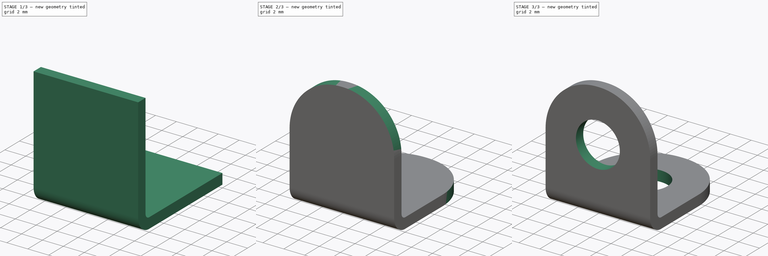
[diagram: build sequence overview — one tinted view per stage of 3, left to right]
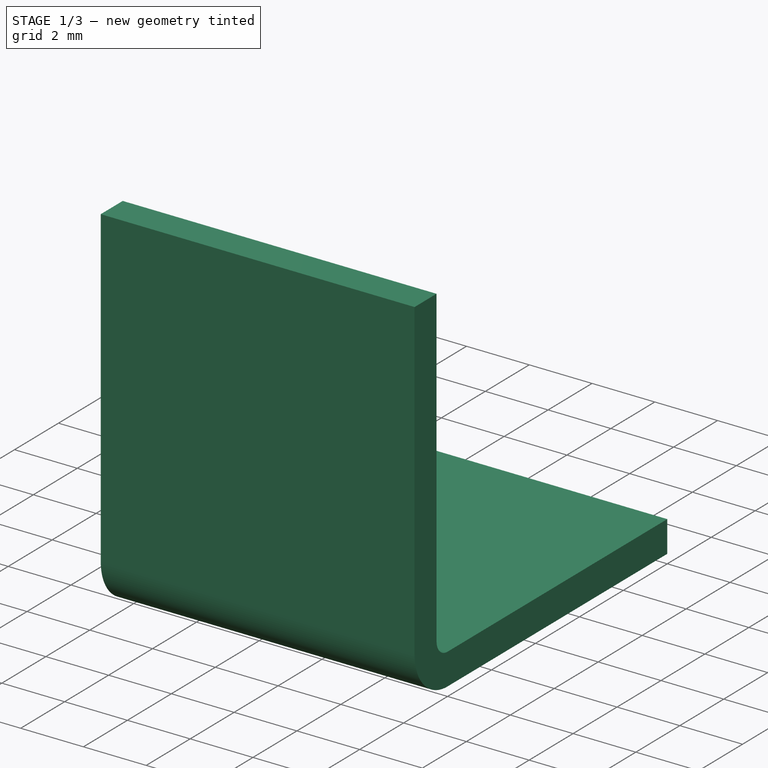
[diagram: stage 1 of 3 — iso view after this stage's code; geometry added in this stage tinted green]
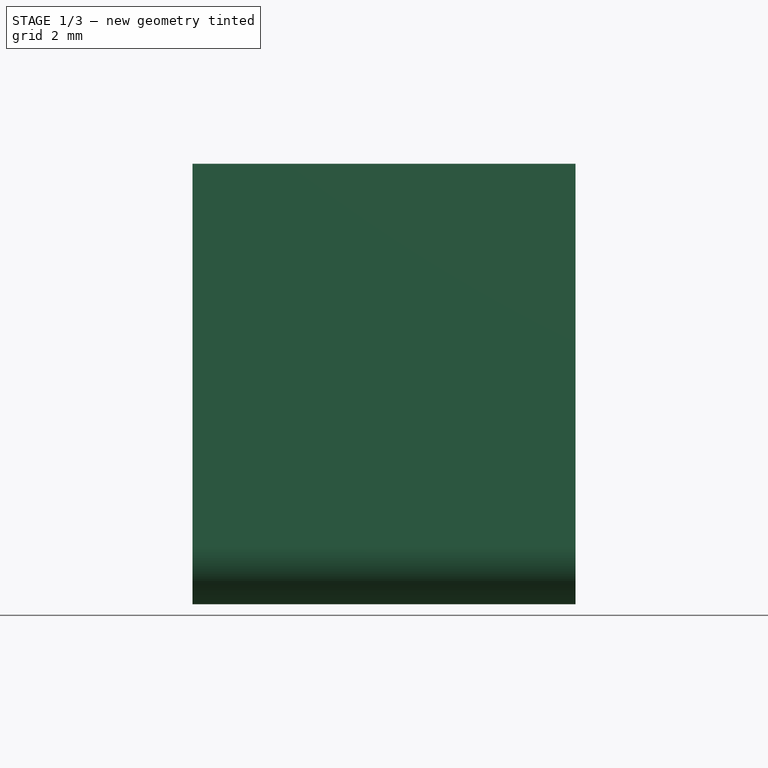
[diagram: stage 1 of 3 — front view after this stage's code; geometry added in this stage tinted green]
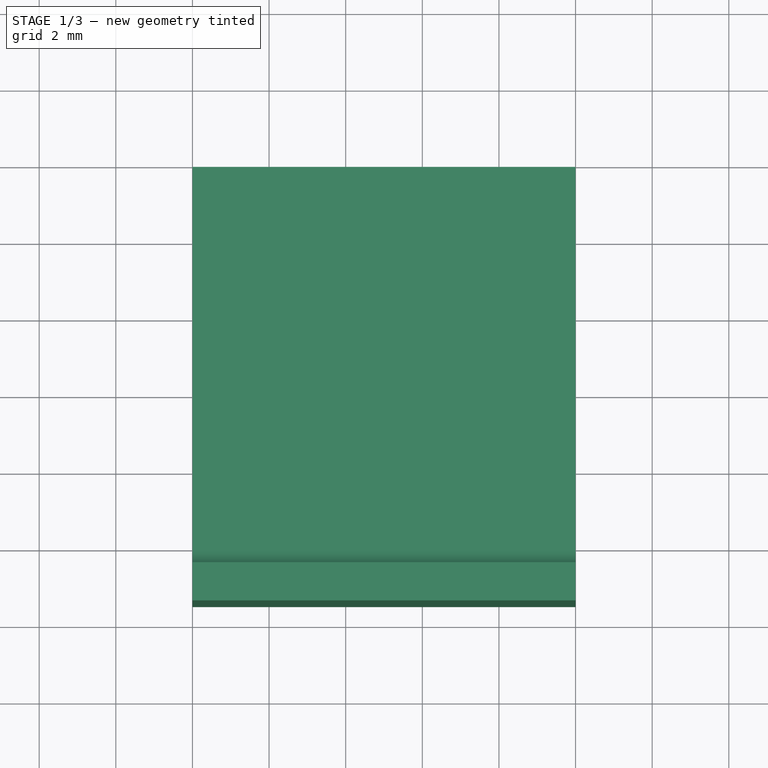
[diagram: stage 1 of 3 — top view after this stage's code; geometry added in this stage tinted green]
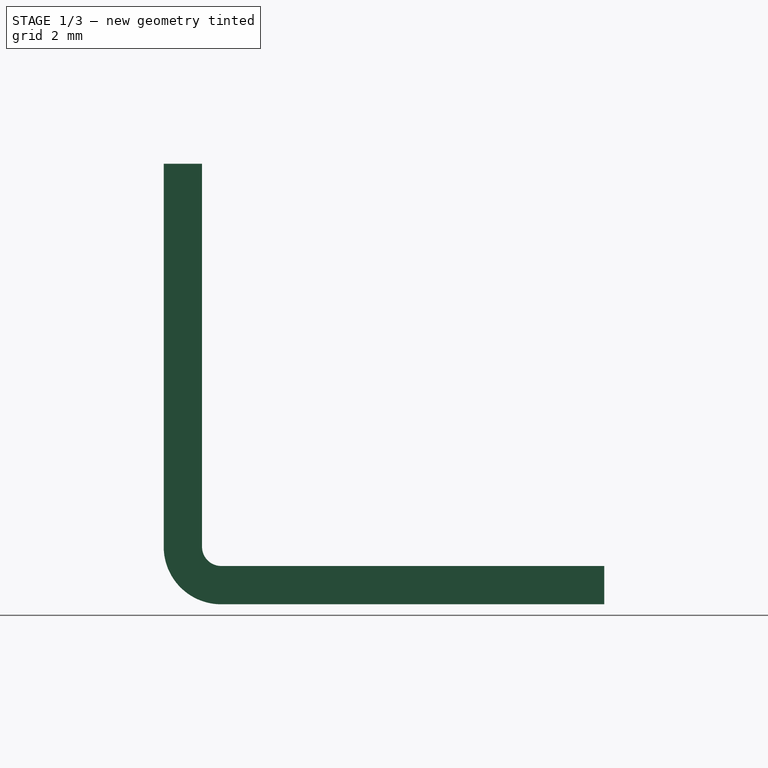
[diagram: stage 1 of 3 — right view after this stage's code; geometry added in this stage tinted green]
FCSTD DOCUMENT  (FreeCAD 0.16RUnknown)
Label: ugol_1_1_v2
License: All rights reserved
LicenseURL: http://en.wikipedia.org/wiki/All_rights_reserved
objects: Sketcher::SketchObject×3, PartDesign::Pocket×2, Drawing::FeatureViewPart×2, PartDesign::Pad×1, Part::FeaturePython×1, PartDesign::Fillet×1, Part::Feature×1, Drawing::FeaturePage×1
note: 12 computed .brp shape members not serialized (recipe doc carries the construction recipe); baked Part::Feature solids carry a one-line shape summary decoded from their .brp

FEATURE [Sketcher::SketchObject] Sketch
  sketch-geometry (4):
    g0: LineSegment StartX=0 StartY=10 StartZ=0 EndX=10 EndY=10 EndZ=0
    g1: LineSegment StartX=10 StartY=10 StartZ=0 EndX=10 EndY=0 EndZ=0
    g2: LineSegment StartX=10 StartY=0 StartZ=0 EndX=0 EndY=0 EndZ=0
    g3: LineSegment StartX=0 StartY=0 StartZ=0 EndX=0 EndY=10 EndZ=0
  constraints (11):
    c: Coincident(g0,g1)
    c: Coincident(g1,g2)
    c: Coincident(g2,g3)
    c: Coincident(g3,g0)
    c: Horizontal(g0)
    c: Horizontal(g2)
    c: Vertical(g1)
    c: Vertical(g3)
    c: DistanceX(g0,g0) = 10
    c: DistanceY(g3,g3) = 10
    c: Coincident(g2,g-1)
FEATURE [PartDesign::Pad] Pad
  Length = 1
  Length2 = 100
  Sketch = -> Sketch
  Type = 0
FEATURE [Part::FeaturePython] Bend  # WARN: FeaturePython — macro-defined, semantics opaque (R4)
  angle = 90
  baseObject = -> Pad [Face3]
  gap1 = 0
  gap2 = 0
  invert = false
  length = 10
  radius = 0.5
  reliefd = 1
  reliefw = 0.5
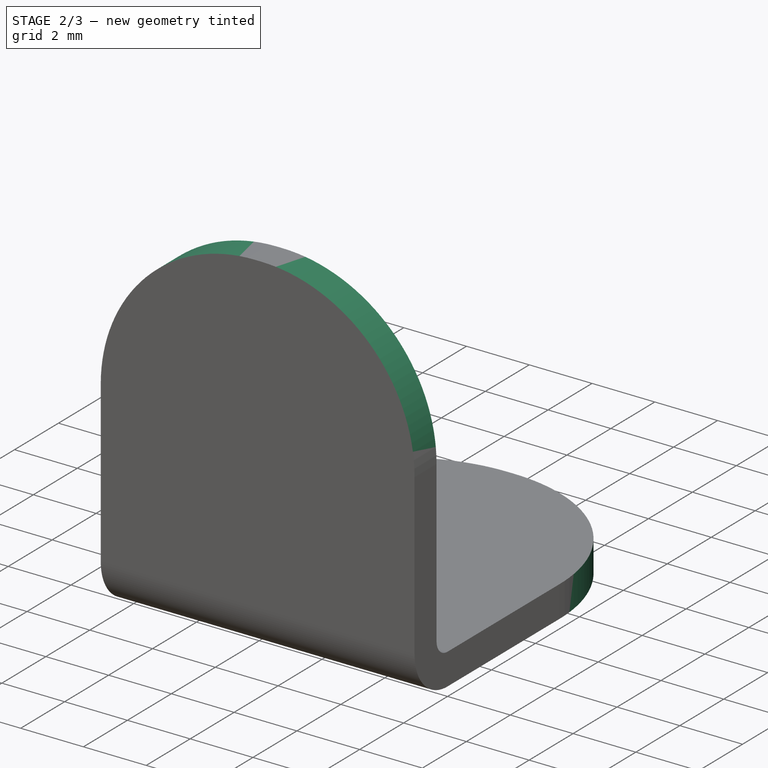
[diagram: stage 2 of 3 — iso view after this stage's code; geometry added in this stage tinted green]
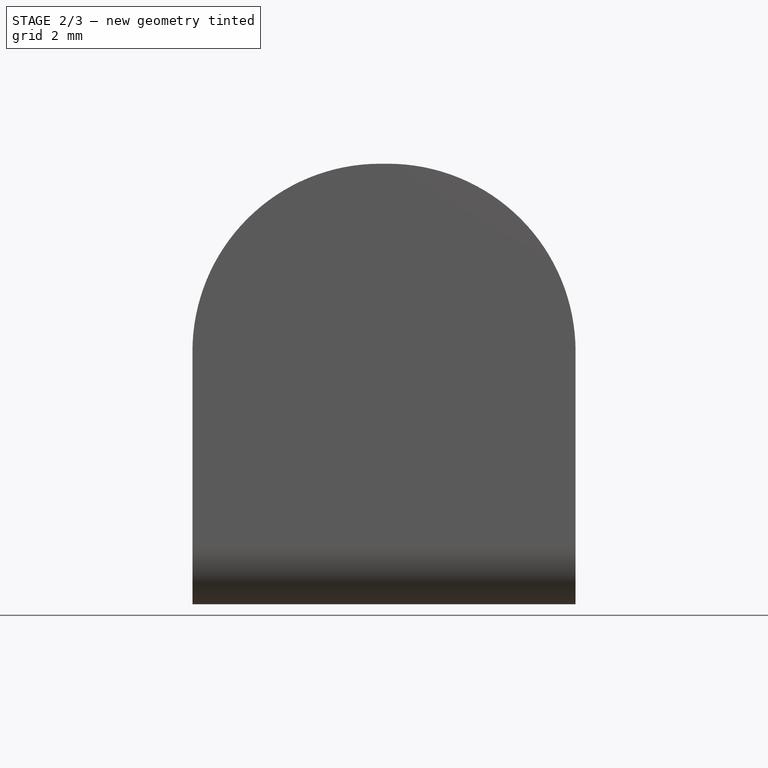
[diagram: stage 2 of 3 — front view after this stage's code; geometry added in this stage tinted green]
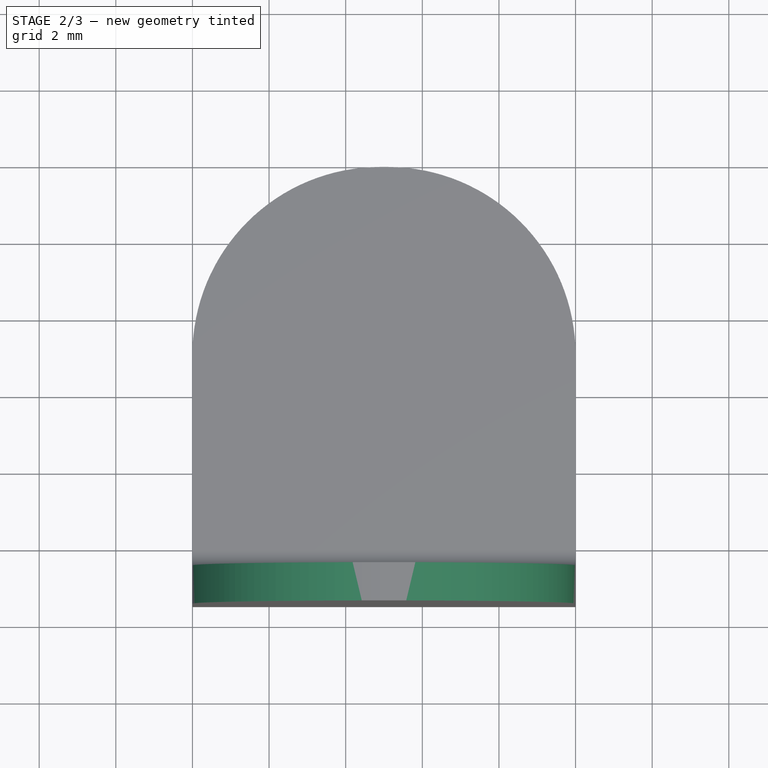
[diagram: stage 2 of 3 — top view after this stage's code; geometry added in this stage tinted green]
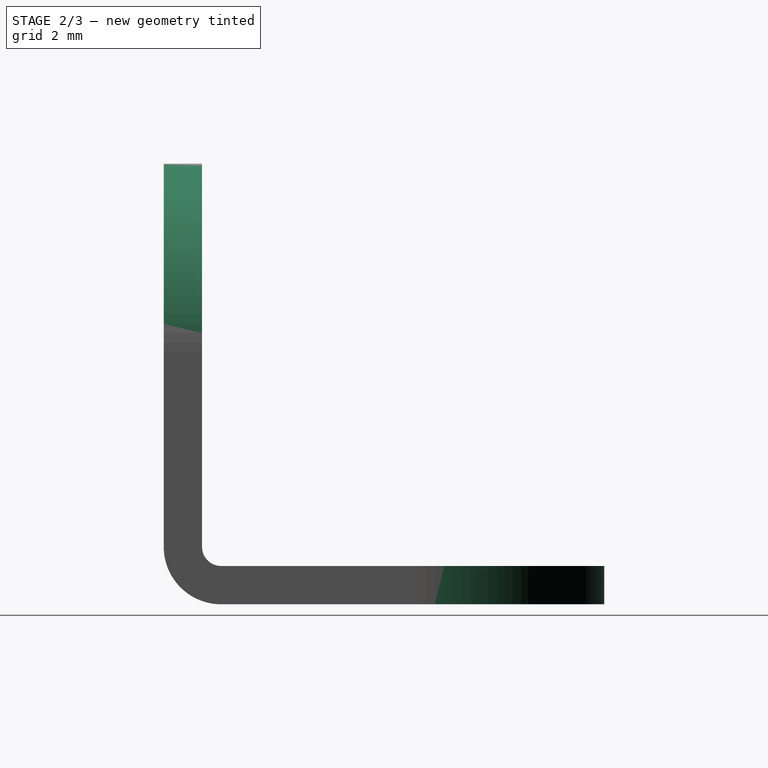
[diagram: stage 2 of 3 — right view after this stage's code; geometry added in this stage tinted green]
FEATURE [PartDesign::Fillet] Fillet
  Base = -> Bend [Edge2,Edge1,Edge24,Edge21]
  Radius = 4.9
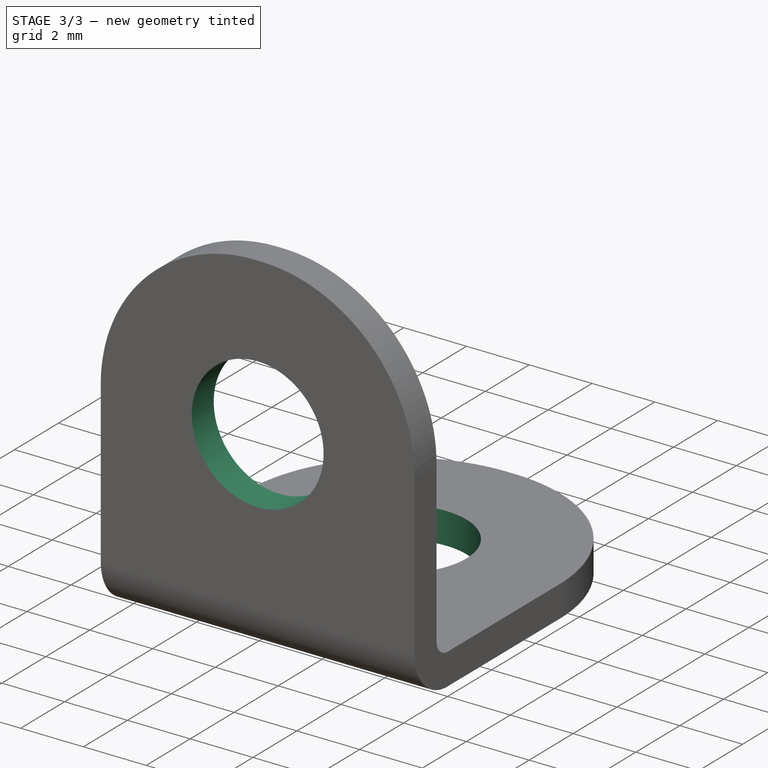
[diagram: stage 3 of 3 — iso view after this stage's code; geometry added in this stage tinted green]
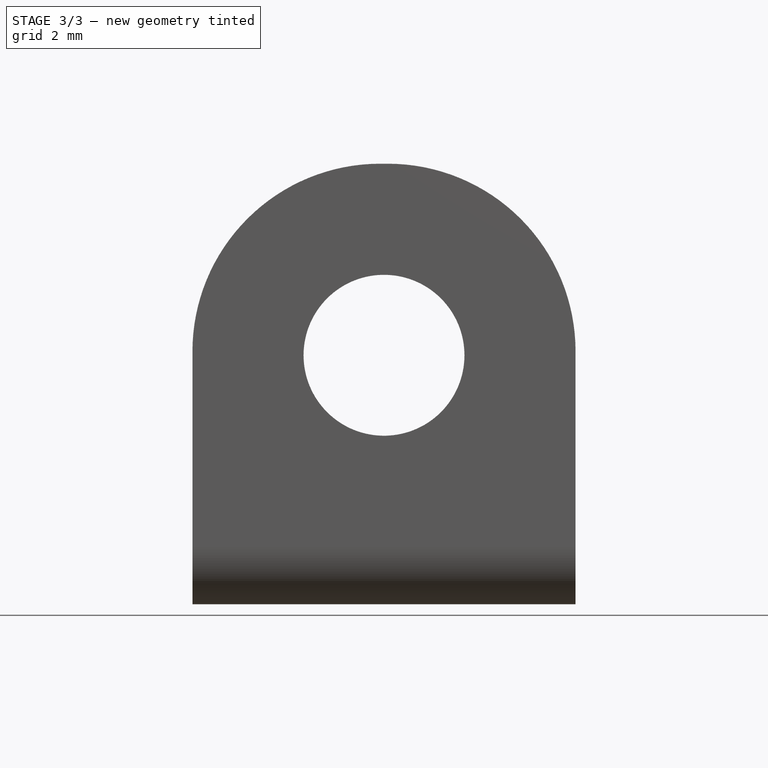
[diagram: stage 3 of 3 — front view after this stage's code; geometry added in this stage tinted green]
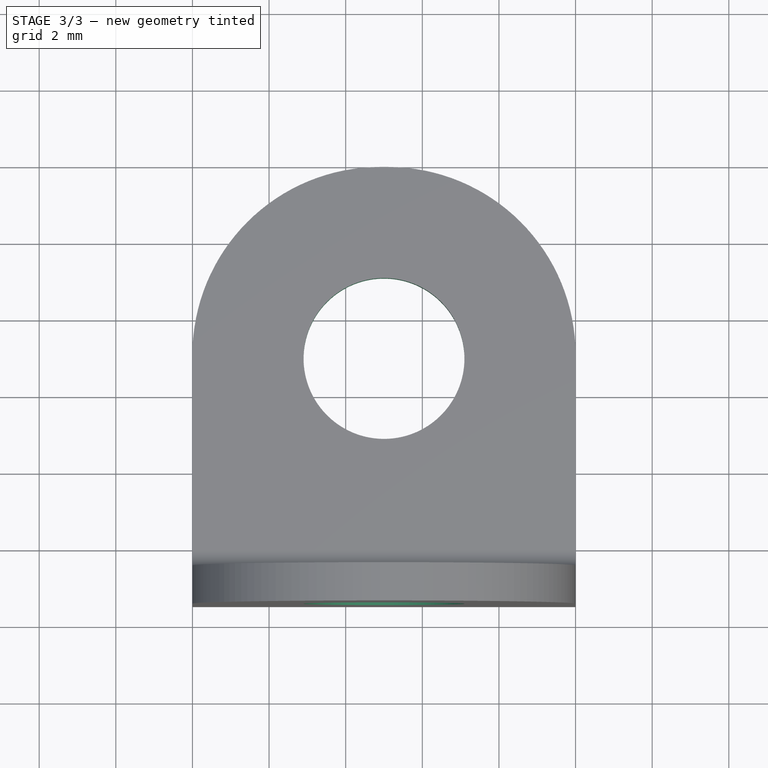
[diagram: stage 3 of 3 — top view after this stage's code; geometry added in this stage tinted green]
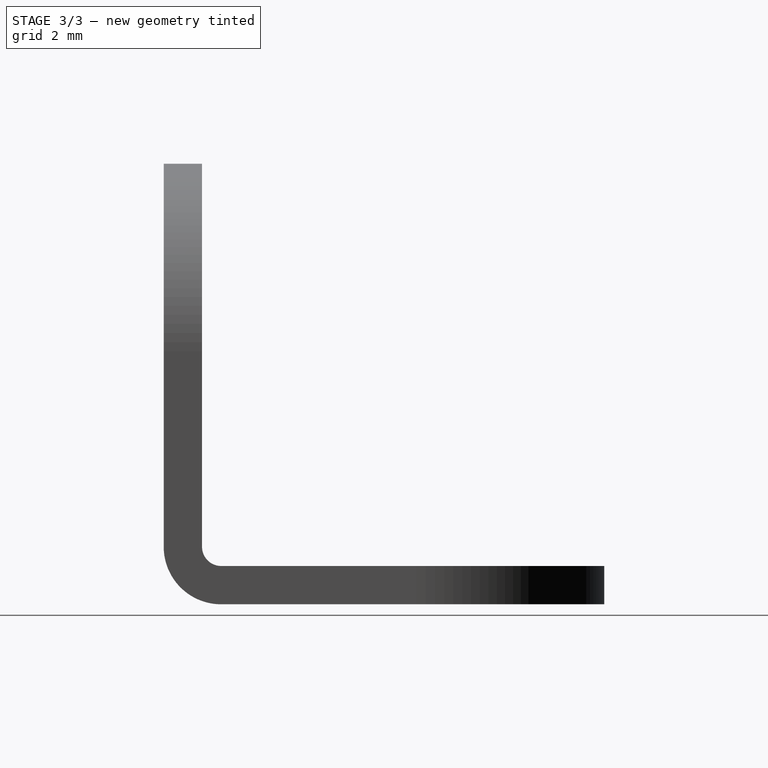
[diagram: stage 3 of 3 — right view after this stage's code; geometry added in this stage tinted green]
FEATURE [Sketcher::SketchObject] Sketch001
  ExternalGeometry = -> [Fillet]
  Placement = pos=(0,-1.5,0) rot=(1,0,0;1.5708rad)
  Support = -> Fillet [Face2]
  sketch-geometry (1):
    g0: Circle CenterX=5 CenterY=6.5 CenterZ=0 NormalX=0 NormalY=0 NormalZ=1 Radius=2.1
  constraints (3):
    c: DistanceX(g0,g-3) = 5
    c: DistanceY(g-3,g0) = 5
    c: Radius(g0) = 2.1
FEATURE [PartDesign::Pocket] Pocket
  Length = 5
  Sketch = -> Sketch001
  Type = 0
FEATURE [Sketcher::SketchObject] Sketch002
  Placement = pos=(0,0,0) rot=(1,0,0;3.14159rad)
  Support = -> Pocket [Face9]
  sketch-geometry (1):
    g0: Circle CenterX=5 CenterY=-5 CenterZ=0 NormalX=0 NormalY=0 NormalZ=1 Radius=2.1
  constraints (3):
    c: DistanceX(g-1,g0) = 5
    c: DistanceY(g0,g-1) = 5
    c: Radius(g0) = 2.1
FEATURE [PartDesign::Pocket] Pocket001
  Length = 5
  Sketch = -> Sketch002
  Type = 0
FEATURE [Part::Feature] Unfold
  shape: bbox 10 x 1 x 21.18 mm, 20 faces (baked)
FEATURE [Drawing::FeatureViewPart] Ortho  label="Ortho_0_0"
  Direction = (1,0,0)
  HiddenWidth = 0.15
  LineWidth = 0.35
  Rotation = -90
  ShowHiddenLines = false
  ShowSmoothLines = false
  Source = -> Unfold
  Tolerance = 0.05
  ViewResult = <blob: 3234 chars omitted>
  Visible = true
  X = 172.667
  Y = 149.411
FEATURE [Drawing::FeatureViewPart] Ortho001  label="Ortho_-1_0"
  Direction = (0,-1,0)
  HiddenWidth = 0.15
  LineWidth = 0.35
  Rotation = 90
  ShowHiddenLines = false
  ShowSmoothLines = false
  Source = -> Unfold
  Tolerance = 0.05
  ViewResult = <g id="Ortho_-1_0"\n   transform="rotate(90,78.3333,149.411) translate(78.3333,149.411) scale(1,1)"\n  >\n<g   stroke="rgb(0, 0, 0)"\n   stroke-width="0.35"\n   stroke-linecap="butt"\n   stroke-linejoin="miter"\n   fill="none"\n   transform="scale(1,-1)"\n  >\n<path id= "1" d=" M 9.67769 4.9 L 9.67769 5.1 " />\n<path d="M4.77769 -8.88178e-16 A4.9 4.9 0 0 1 9.67769 4.9" /><path d="M4.77769 10 A4.9 4.9 0 0 0 9.67769 5.1" /><path id= "4" d=" M -0.322307 0 L 4.77769 0 " />\n<path id= "5" d=" M 4.77769 10 L -0.322307 10 " />\n<path id= "6" d=" M -0.322307 10 L -0.322307 0 " />\n<circle cx ="4.67769" cy ="5" r ="2.1" /><path id= "8" d=" M -1.5 10 L -1.5 0 " />\n<path id= "9" d=" M -1.5 10 L -0.322307 10 " />\n<path id= "10" d=" M -1.5 0 L -0.322307 0 " />\n<path id= "11" d=" M -1.5 10 L -6.6 10 " />\n<path d="M-11.5 5.1 A4.9 4.9 0 0 0 -6.6 10" /><path id= "13" d=" M -11.5 5.1 L -11.5 4.9 " />\n<path id= "14" d=" M -1.5 0 L -6.6 0 " />\n<path d="M-11.5 4.9 A4.9 4.9 0 0 1 -6.6 -8.88178e-16" /><circle cx ="-6.5" cy ="5" r ="2.1" /><path d="M-11.5 5.1 A4.9 4.9 0 0 0 -6.6 10" /></g>\n</g>
  Visible = true
  X = 78.3333
  Y = 149.411
FEATURE [Drawing::FeaturePage] Page001
  Group = -> [Ortho,Ortho001]
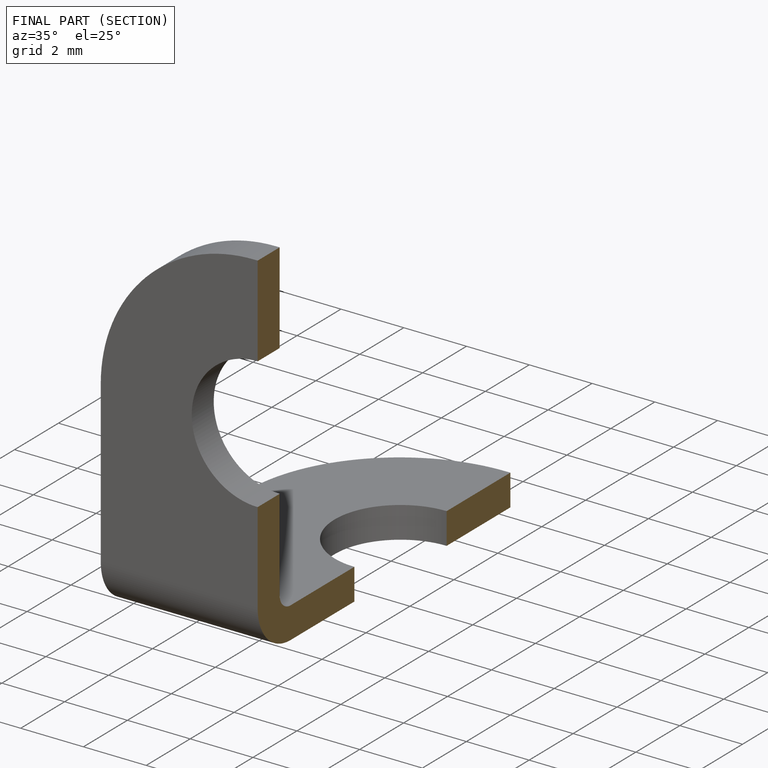
[diagram: finished part — half-section view (interior)]
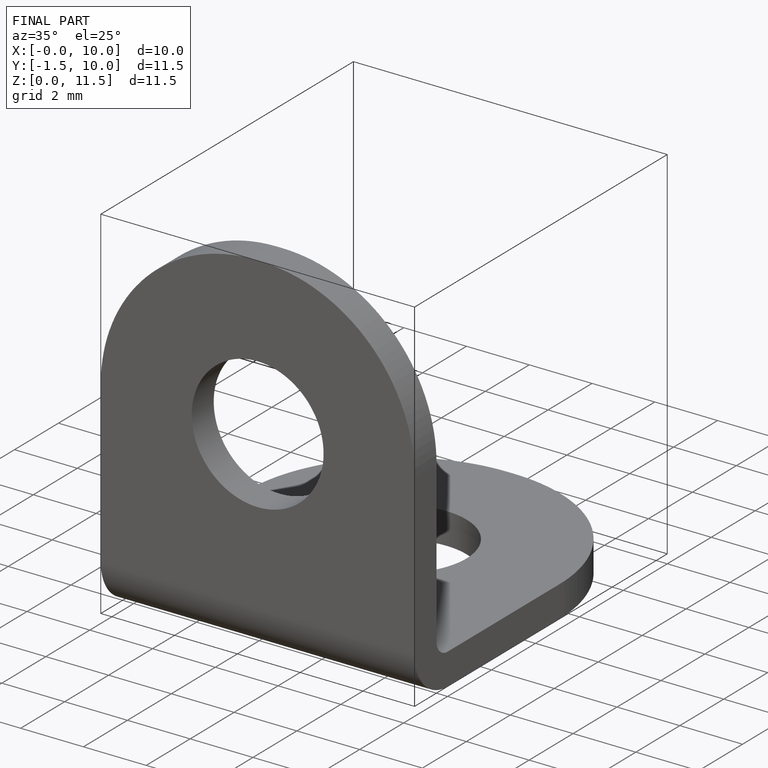
[diagram: finished part — iso view with bounding-box wireframe]
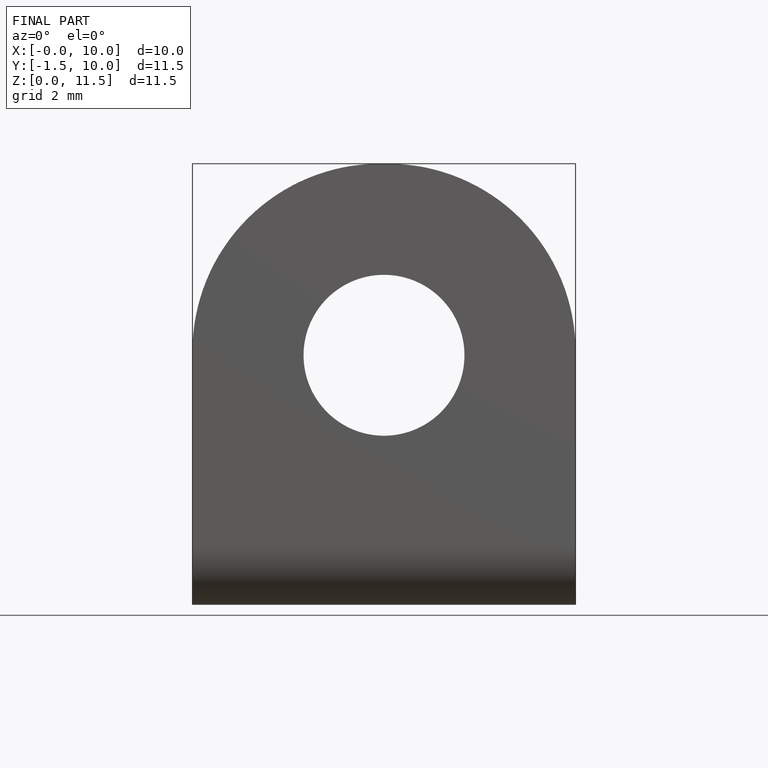
[diagram: finished part — front view with bounding-box wireframe]
